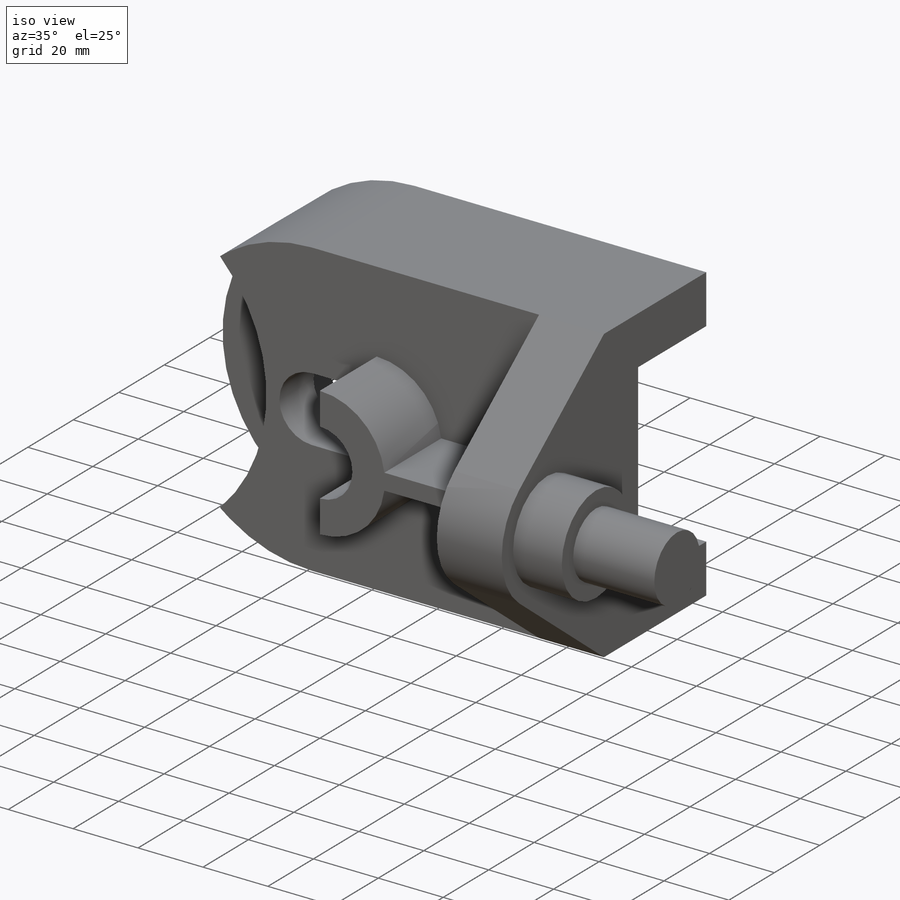
[diagram: iso view]
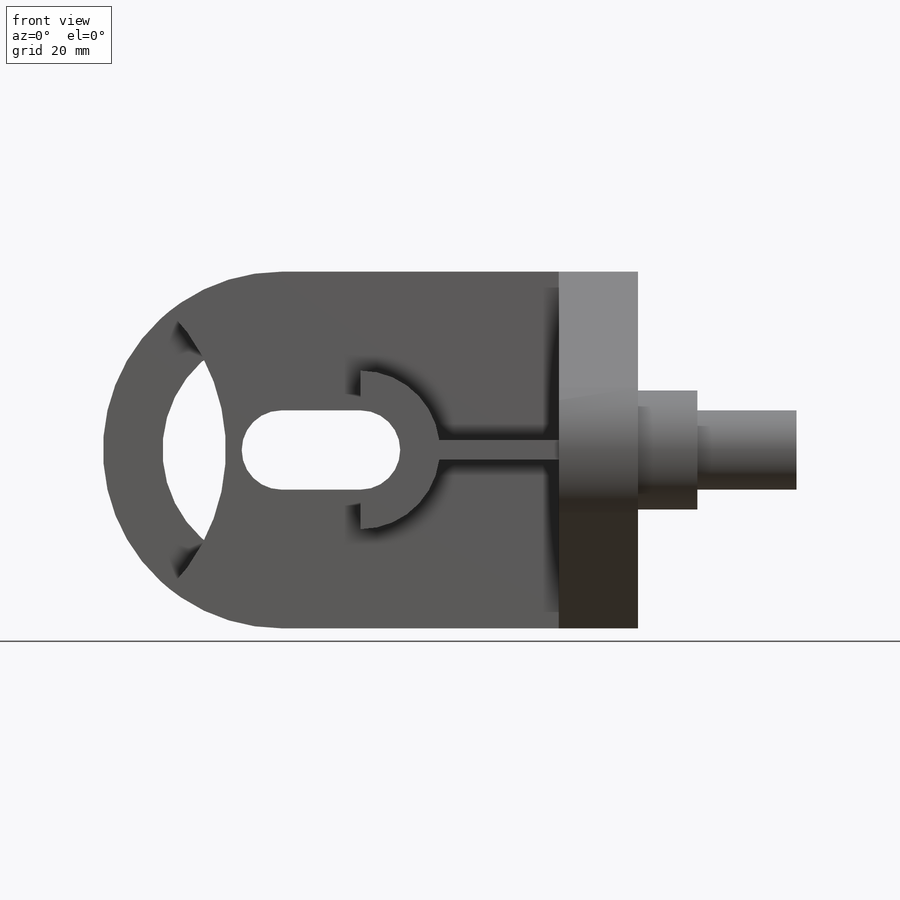
[diagram: front view]
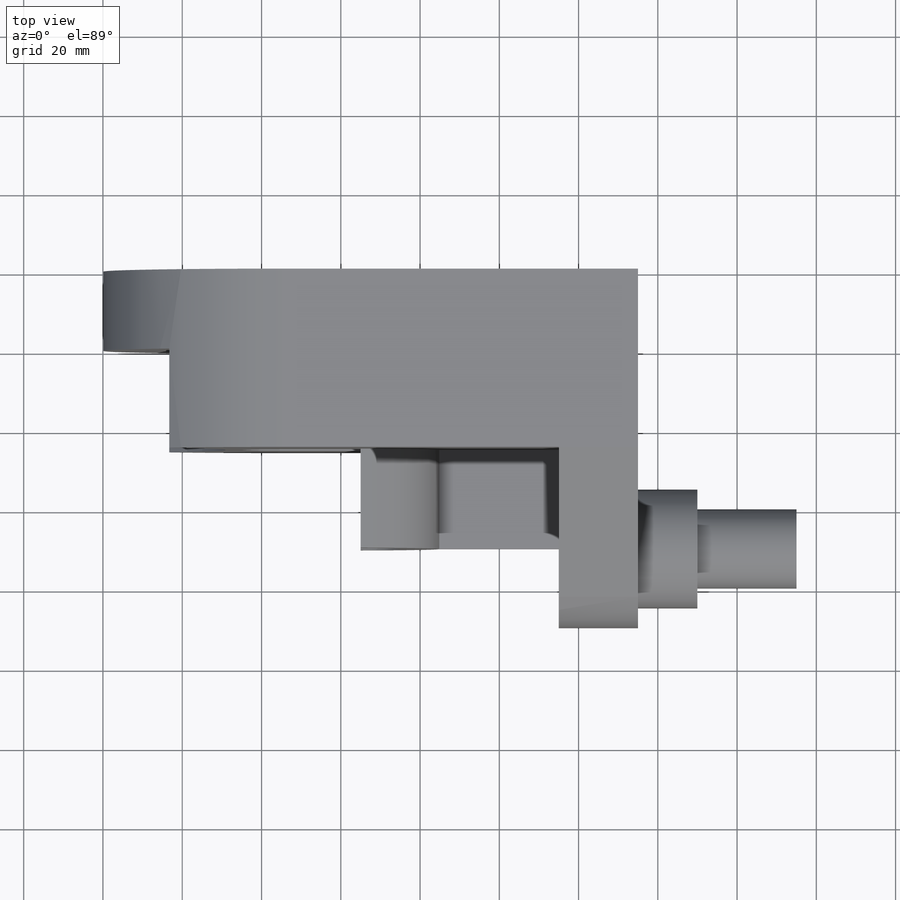
[diagram: top view]
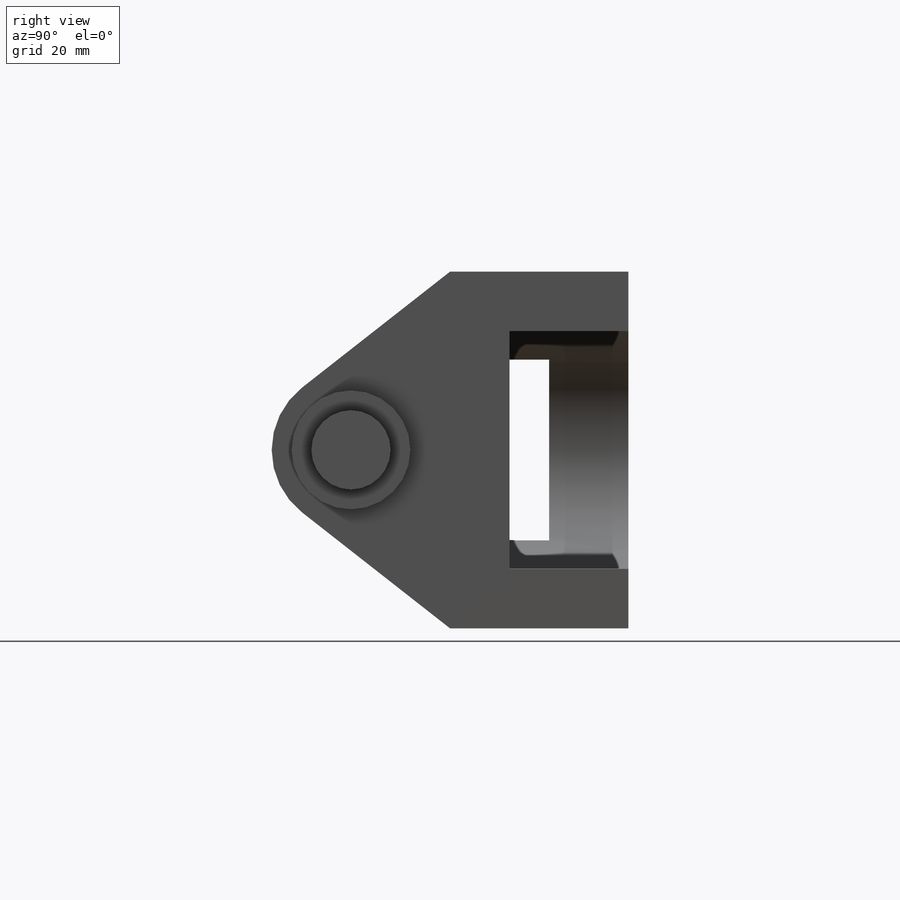
[diagram: right view]
SOLIDWORKS PART (.sldprt)
format: sldprt  version: not decoded by parser v0  size: 399,872 bytes
history: native  units: mm
features: sketch x13, cut_extrude x10, extrude x3, material x1, plane x1 (+13 scaffold rows collapsed)
feature tree (41):
  scaffold x13  (default folders/planes/origin — collapsed)
  material  "Material <not specified>"
  sketch  "Sketch1"  dims[D1=175.0mm D2=90.0mm]
  extrude  "Boss-Extrude1"  Depth=90mm
  sketch  "Sketch2"  dims[D2=45.0mm D1=45.0mm D3=45.0mm D4=45.0mm]
  cut_extrude  "Cut-Extrude1"  Depth=90mm
  sketch  "Sketch3"  dims[D1=40.0mm D2=40.0mm D3=30.0mm D4=30.0mm]
  cut_extrude  "Cut-Extrude2"  Depth=90mm
  sketch  "Sketch4"  dims[D1=5.0mm D2=5.0mm D3=25.0mm D4=25.0mm]
  cut_extrude  "Cut-Extrude3"  Depth=90mm
  sketch  "Sketch5"  dims[D3=50.0mm D1=10.0mm D2=10.0mm]
  cut_extrude  "Cut-Extrude4"  Depth=70mm
  sketch  "Sketch6"  dims[D1=40.0mm D2=45.0mm D3=70.0mm D4=45.0mm D5=45.0mm]
  cut_extrude  "Cut-Extrude5"  Depth=308mm
  sketch  "Sketch7"  dims[D6=30.0mm D1=15.0mm D2=15.0mm D3=90.0mm D4=90.0mm D5=60.0mm D7=0.0mm D8=30.0mm]
  cut_extrude  "Cut-Extrude6"  Depth=30mm
  sketch  "Sketch8"  dims[D1=20.0mm D2=20.0mm D3=45.0mm]
  cut_extrude  "Cut-Extrude7"  Depth=25mm
  sketch  "Sketch9"  dims[D1=30.0mm]
  cut_extrude  "Cut-Extrude8"  Depth=15mm
  plane  "Plane1"  Offset=115mm
  sketch  "Sketch10"  dims[D1=45.0mm D2=45.0mm D3=0.0mm D4=0.0mm]
  cut_extrude  "Cut-Extrude9"  Depth=154mm
  sketch  "Sketch11"  dims[D2=10.0mm D7=20.0mm D1=20.0mm D3=10.0mm D4=45.0mm D5=65.0mm D6=10.0mm]
  extrude  "Boss-Extrude2"  Depth=25mm
  sketch  "Sketch12"  dims[D2=10.0mm D1=20.0mm]
  cut_extrude  "Cut-Extrude10"  Depth=15mm
  sketch  "Sketch13"  dims[D1=5.0mm D2=42.5mm D3=42.5mm]
  extrude  "Boss-Extrude3"  Depth=25mm
decode coverage: 26 of 26 modeling features carry decoded parameters
note: suppression state not decoded; provenance and decode notes live in map.json
